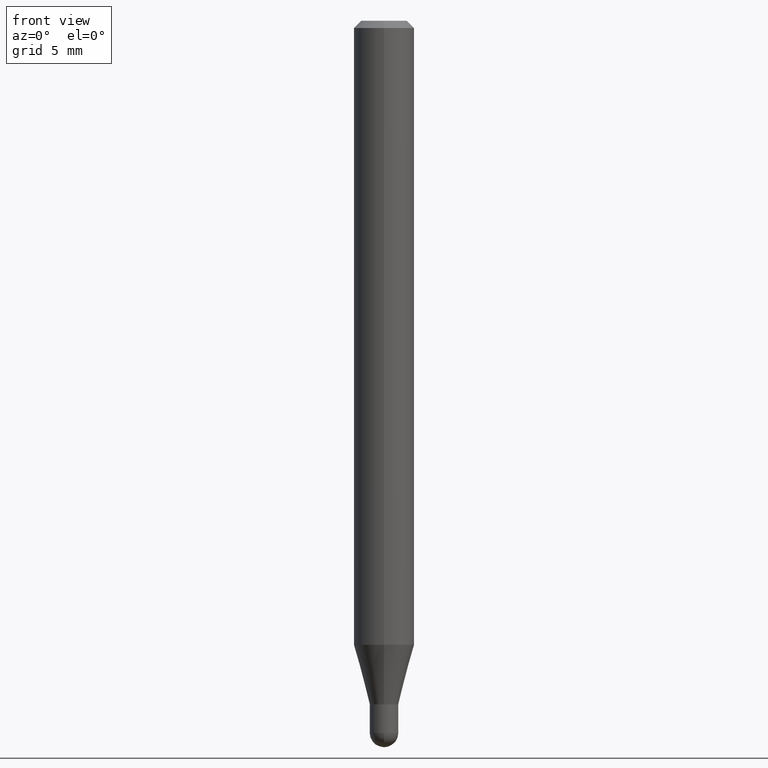
[diagram: clean part render]
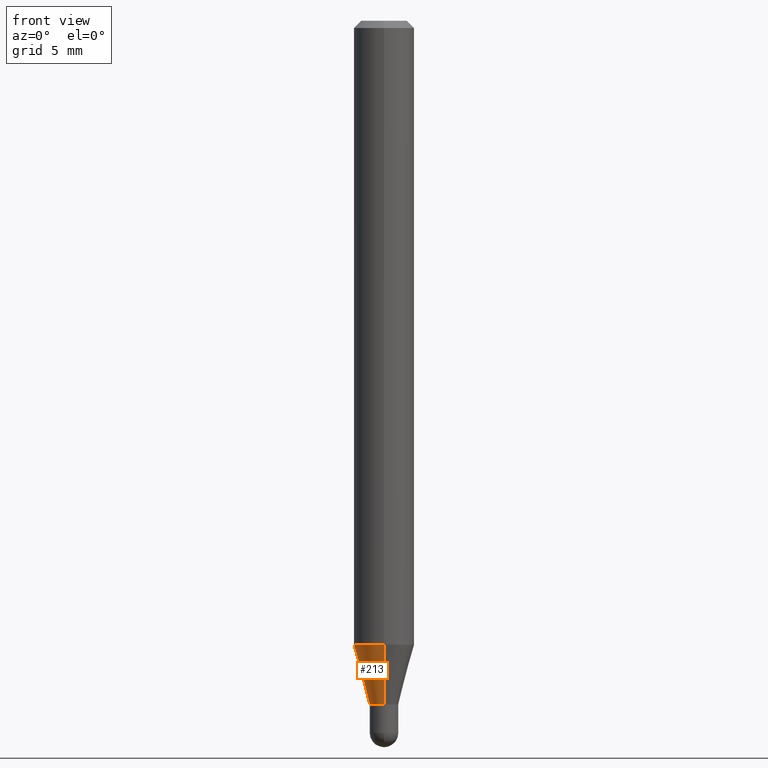
[diagram: same view with one face highlighted and labeled with its STEP entity id]
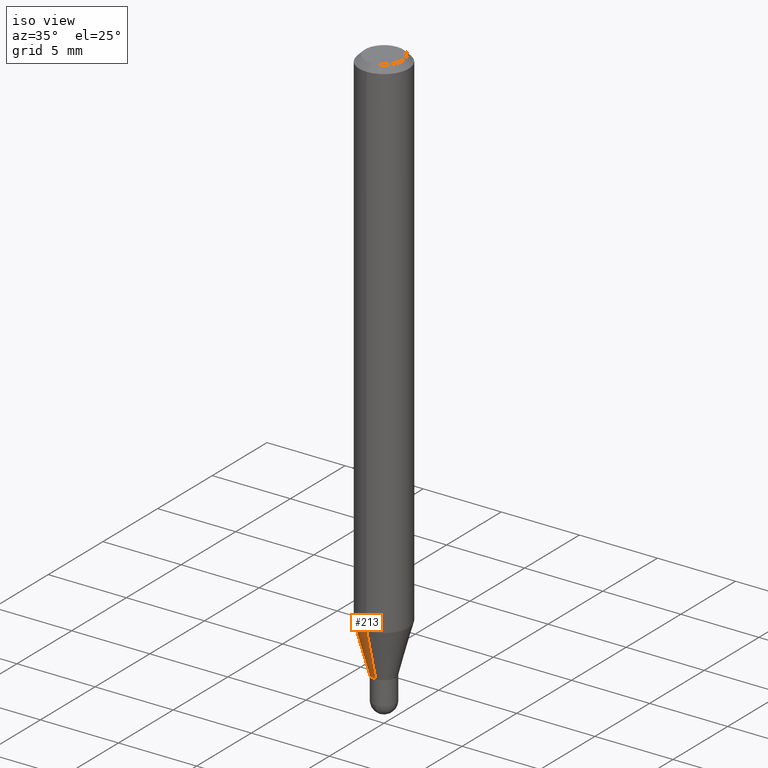
[diagram: same view with one face highlighted and labeled with its STEP entity id]
A machine part, front view. The second image highlights one B-rep face of the part: STEP entity #213.
A second angle (iso view) of the same face is appended — the face is thin or edge-on in the first view.
In plain terms, the highlighted conical surface has half-angle 15 deg.
Its self-contained STEP definition (entity closure, byte-faithful):
#2 = ORIENTED_EDGE ( 'NONE', *, *, #252, .F. ) ;
#3 = CARTESIAN_POINT ( 'NONE',  ( 3.268496584496797545E-16, 0.02949999999999526612, -1.411500000000000199 ) ) ;
#20 = CARTESIAN_POINT ( 'NONE',  ( 4.440892098500937762E-16, 0.06249999999999546890, -1.288342323350232244 ) ) ;
#30 = EDGE_CURVE ( 'NONE', #60, #437, #422, .T. ) ;
#42 = AXIS2_PLACEMENT_3D ( 'NONE', #247, #458, #243 ) ;
#54 = ORIENTED_EDGE ( 'NONE', *, *, #158, .T. ) ;
#60 = VERTEX_POINT ( 'NONE', #3 ) ;
#83 = VECTOR ( 'NONE', #88, 39.37007874015748143 ) ;
#88 = DIRECTION ( 'NONE',  ( -1.807323732225377077E-15, -0.2588190451025249028, 0.9659258262890670910 ) ) ;
#96 = CARTESIAN_POINT ( 'NONE',  ( 3.150601835333700931E-29, -4.498221931419294481E-15, -1.288342323350231799 ) ) ;
#110 = FACE_OUTER_BOUND ( 'NONE', #370, .T. ) ;
#111 = CONICAL_SURFACE ( 'NONE', #463, 0.02950000000000019620, 0.2617993877991572349 ) ;
#118 = DIRECTION ( 'NONE',  ( -6.982962677686265922E-15, -1.000000000000000000, 0.000000000000000000 ) ) ;
#124 = LINE ( 'NONE', #446, #83 ) ;
#158 = EDGE_CURVE ( 'NONE', #60, #257, #283, .T. ) ;
#165 = DIRECTION ( 'NONE',  ( -6.982962677686265922E-15, -1.000000000000000000, 4.370956789862821150E-15 ) ) ;
#208 = CARTESIAN_POINT ( 'NONE',  ( -2.059973989917116845E-16, -0.02950000000000512629, -1.411500000000000199 ) ) ;
#210 = ORIENTED_EDGE ( 'NONE', *, *, #30, .F. ) ;
#213 = ADVANCED_FACE ( 'NONE', ( #110 ), #111, .T. ) ;
#235 = CARTESIAN_POINT ( 'NONE',  ( 2.096101070492654370E-16, 0.02949999999999526612, -1.411500000000000199 ) ) ;
#241 = DIRECTION ( 'NONE',  ( 1.839019923739647647E-15, 0.2588190451025316197, 0.9659258262890653146 ) ) ;
#243 = DIRECTION ( 'NONE',  ( -6.982962677686265922E-15, -1.000000000000000000, 0.000000000000000000 ) ) ;
#247 = CARTESIAN_POINT ( 'NONE',  ( 3.451780175170567435E-29, -4.928224541818698514E-15, -1.411500000000000199 ) ) ;
#252 = EDGE_CURVE ( 'NONE', #437, #301, #391, .T. ) ;
#257 = VERTEX_POINT ( 'NONE', #208 ) ;
#278 = CARTESIAN_POINT ( 'NONE',  ( 3.451780175170567435E-29, -4.928224541818698514E-15, -1.411500000000000199 ) ) ;
#283 = CIRCLE ( 'NONE', #42, 0.02950000000000019620 ) ;
#301 = VERTEX_POINT ( 'NONE', #488 ) ;
#360 = ORIENTED_EDGE ( 'NONE', *, *, #467, .T. ) ;
#370 = EDGE_LOOP ( 'NONE', ( #210, #54, #360, #2 ) ) ;
#377 = DIRECTION ( 'NONE',  ( -2.445469482940536333E-29, 3.491480369690894735E-15, 1.000000000000000000 ) ) ;
#391 = CIRCLE ( 'NONE', #433, 0.06250000000000000000 ) ;
#422 = LINE ( 'NONE', #235, #505 ) ;
#433 = AXIS2_PLACEMENT_3D ( 'NONE', #96, #377, #165 ) ;
#437 = VERTEX_POINT ( 'NONE', #20 ) ;
#446 = CARTESIAN_POINT ( 'NONE',  ( -2.059973989917116845E-16, -0.02950000000000512629, -1.411500000000000199 ) ) ;
#458 = DIRECTION ( 'NONE',  ( -2.445469482940536333E-29, 3.491480369690894735E-15, 1.000000000000000000 ) ) ;
#463 = AXIS2_PLACEMENT_3D ( 'NONE', #278, #492, #118 ) ;
#467 = EDGE_CURVE ( 'NONE', #257, #301, #124, .T. ) ;
#488 = CARTESIAN_POINT ( 'NONE',  ( -4.364351673553603122E-16, -0.06250000000000451028, -1.288342323350231577 ) ) ;
#492 = DIRECTION ( 'NONE',  ( -2.445469482940536333E-29, 3.491480369690894735E-15, 1.000000000000000000 ) ) ;
#505 = VECTOR ( 'NONE', #241, 39.37007874015748854 ) ;